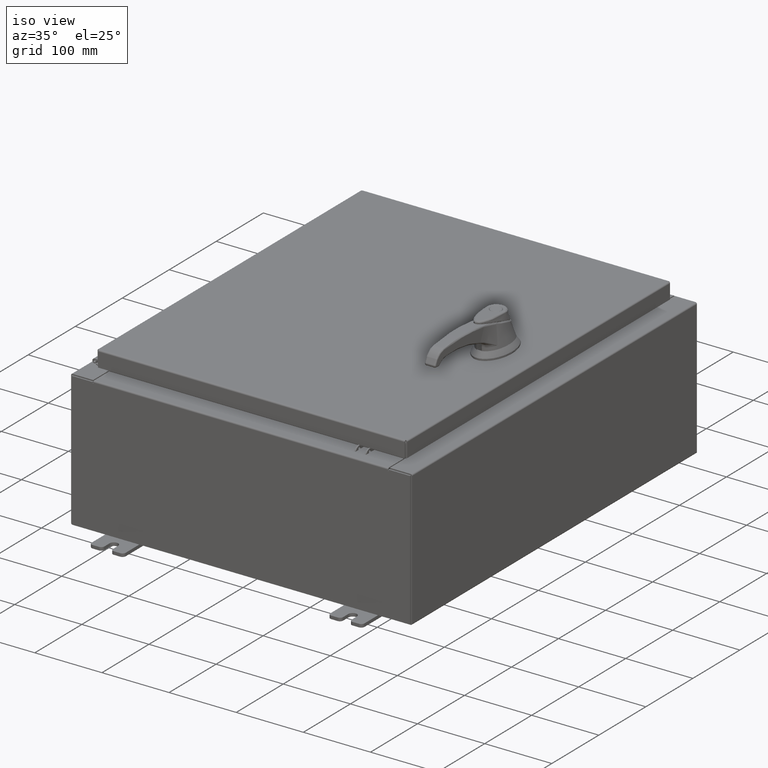
[diagram: clean part render]
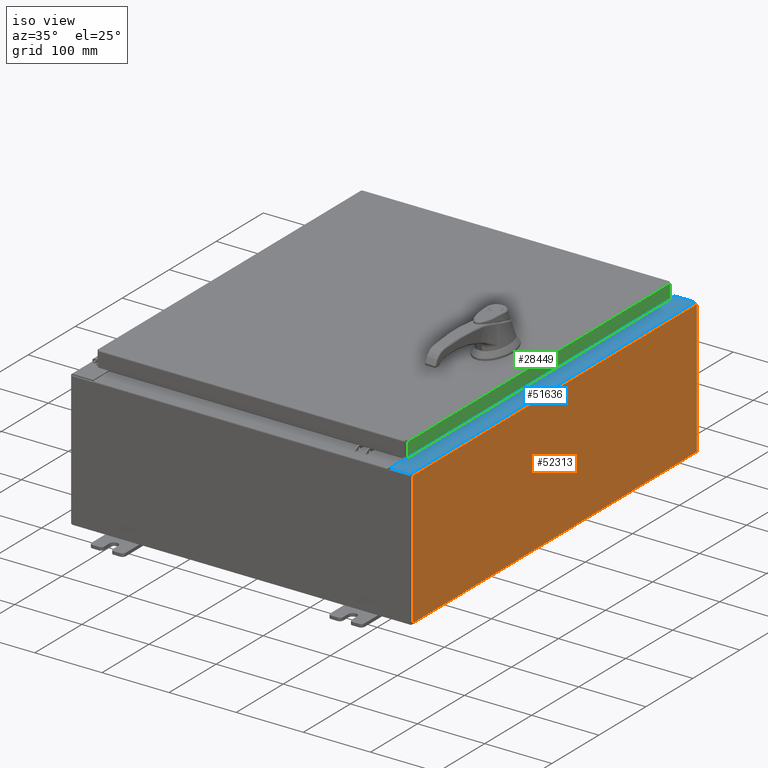
[diagram: same view with three faces highlighted in distinct colors, each labeled with its STEP entity id]
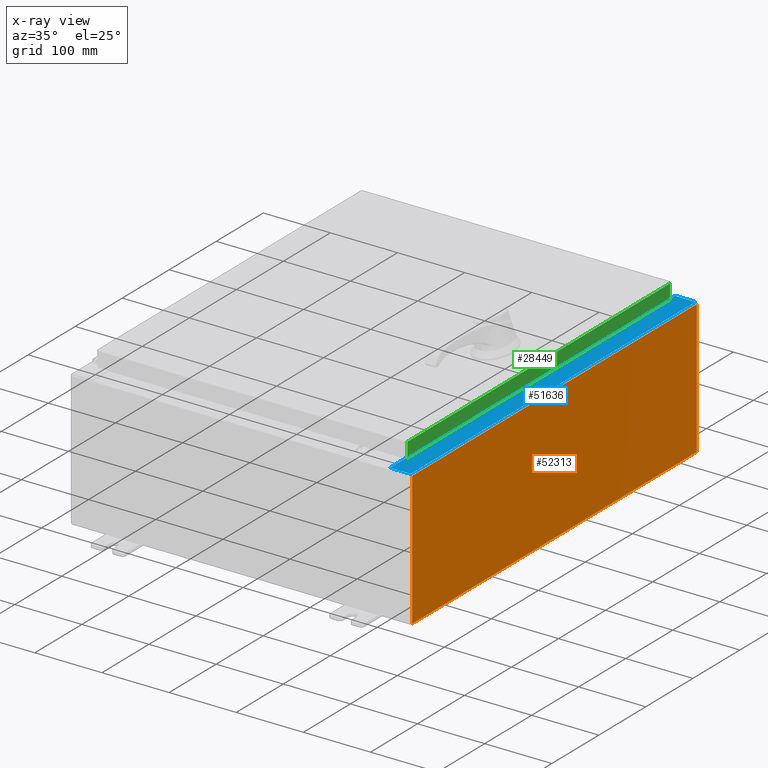
[diagram: x-ray of the same camera — body ghosted, the three highlighted faces saturated]
A machine part, iso view with three faces highlighted in distinct colors.
The next image is the same camera in x-ray (body ghosted, the three faces saturated) — at least one of them is partly hidden behind the body in this view.
Their STEP definitions:

[orange] entity #52313 — the highlighted planar face has unit normal (-1, 0, 0).
#10061 = VERTEX_POINT ( 'NONE', #60053 ) ;
#10732 = VERTEX_POINT ( 'NONE', #104570 ) ;
#11714 = LINE ( 'NONE', #12721, #102283 ) ;
#12721 = CARTESIAN_POINT ( 'NONE',  ( 10.00000000000002800, 11.92530000000000000, 7.837599999999992100 ) ) ;
#16043 = VECTOR ( 'NONE', #21494, 39.37007874015748100 ) ;
#20081 = EDGE_CURVE ( 'NONE', #10061, #73490, #74102, .T. ) ;
#21494 = DIRECTION ( 'NONE',  ( -3.584876173029202900E-015, 0.0000000000000000000, -1.000000000000000000 ) ) ;
#22792 = FACE_OUTER_BOUND ( 'NONE', #48271, .T. ) ;
#26773 = CARTESIAN_POINT ( 'NONE',  ( 10.00000000000000000, -11.92530000000000000, 0.01299999999999984700 ) ) ;
#33701 = DIRECTION ( 'NONE',  ( -1.000000000000000000, 0.0000000000000000000, 3.584876173029202900E-015 ) ) ;
#37243 = EDGE_CURVE ( 'NONE', #10732, #77894, #11714, .T. ) ;
#40558 = ORIENTED_EDGE ( 'NONE', *, *, #74098, .T. ) ;
#48271 = EDGE_LOOP ( 'NONE', ( #67794, #56634, #54606, #40558 ) ) ;
#48746 = CARTESIAN_POINT ( 'NONE',  ( 10.00000000000000000, -11.92530000000000000, -3.610957538630361200E-014 ) ) ;
#49134 = LINE ( 'NONE', #72781, #66979 ) ;
#50753 = VECTOR ( 'NONE', #53262, 39.37007874015748100 ) ;
#50918 = EDGE_CURVE ( 'NONE', #77894, #73490, #106565, .T. ) ;
#52271 = AXIS2_PLACEMENT_3D ( 'NONE', #68628, #33701, #95015 ) ;
#52313 = ADVANCED_FACE ( 'NONE', ( #22792 ), #86244, .F. ) ;
#52643 = CARTESIAN_POINT ( 'NONE',  ( 10.00000000000002800, -11.92530000000000000, 7.837599999999998300 ) ) ;
#53262 = DIRECTION ( 'NONE',  ( -0.0000000000000000000, -1.000000000000000000, -0.0000000000000000000 ) ) ;
#54606 = ORIENTED_EDGE ( 'NONE', *, *, #20081, .F. ) ;
#56634 = ORIENTED_EDGE ( 'NONE', *, *, #50918, .T. ) ;
#60053 = CARTESIAN_POINT ( 'NONE',  ( 10.00000000000000000, 11.92529999999999800, 0.01299999999999984700 ) ) ;
#65604 = CARTESIAN_POINT ( 'NONE',  ( 10.00000000000000000, -11.92530000000000000, 0.01299999999999983600 ) ) ;
#66979 = VECTOR ( 'NONE', #81585, 39.37007874015748100 ) ;
#67794 = ORIENTED_EDGE ( 'NONE', *, *, #37243, .T. ) ;
#68628 = CARTESIAN_POINT ( 'NONE',  ( 10.00000000000000000, 0.0000000000000000000, -3.610957538630361200E-014 ) ) ;
#72781 = CARTESIAN_POINT ( 'NONE',  ( 10.00000000000000000, 11.92530000000000000, -3.610957538630361200E-014 ) ) ;
#73490 = VERTEX_POINT ( 'NONE', #65604 ) ;
#74098 = EDGE_CURVE ( 'NONE', #10061, #10732, #49134, .T. ) ;
#74102 = LINE ( 'NONE', #26773, #50753 ) ;
#74144 = DIRECTION ( 'NONE',  ( -0.0000000000000000000, -1.000000000000000000, -0.0000000000000000000 ) ) ;
#77894 = VERTEX_POINT ( 'NONE', #52643 ) ;
#81585 = DIRECTION ( 'NONE',  ( 3.584876173029202900E-015, 0.0000000000000000000, 1.000000000000000000 ) ) ;
#86244 = PLANE ( 'NONE',  #52271 ) ;
#95015 = DIRECTION ( 'NONE',  ( 3.584876173029202900E-015, 0.0000000000000000000, 1.000000000000000000 ) ) ;
#102283 = VECTOR ( 'NONE', #74144, 39.37007874015748100 ) ;
#104570 = CARTESIAN_POINT ( 'NONE',  ( 10.00000000000002800, 11.92529999999999800, 7.837599999999992100 ) ) ;
#106565 = LINE ( 'NONE', #48746, #16043 ) ;

[blue] entity #51636 — the highlighted planar face has unit normal (-0, 0, -1).
#556 = VECTOR ( 'NONE', #62189, 39.37007874015748100 ) ;
#4041 = CARTESIAN_POINT ( 'NONE',  ( 8.699700000000028400, -2.820533458446088700E-030, 7.925300000000007100 ) ) ;
#4826 = AXIS2_PLACEMENT_3D ( 'NONE', #73505, #20888, #82283 ) ;
#6451 = CARTESIAN_POINT ( 'NONE',  ( 8.699700000000028400, -2.820533458446088700E-030, 7.925300000000007100 ) ) ;
#9403 = VERTEX_POINT ( 'NONE', #89696 ) ;
#11134 = CARTESIAN_POINT ( 'NONE',  ( 8.750050000000030100, 10.63109999999999500, 7.925300000000008900 ) ) ;
#11770 = DIRECTION ( 'NONE',  ( -1.000000000000000000, 0.0000000000000000000, 0.0000000000000000000 ) ) ;
#13846 = EDGE_CURVE ( 'NONE', #51890, #95538, #57449, .T. ) ;
#14103 = AXIS2_PLACEMENT_3D ( 'NONE', #47082, #108380, #55924 ) ;
#14361 = EDGE_CURVE ( 'NONE', #72703, #28736, #97135, .T. ) ;
#14642 = CARTESIAN_POINT ( 'NONE',  ( 8.699700000000028400, 10.63109999999999600, 7.925300000000007100 ) ) ;
#15714 = CARTESIAN_POINT ( 'NONE',  ( 8.699700000000028400, 11.92529999999999600, 7.925300000000007100 ) ) ;
#16038 = CIRCLE ( 'NONE', #14103, 0.01867499999999949400 ) ;
#19940 = VERTEX_POINT ( 'NONE', #34117 ) ;
#20550 = LINE ( 'NONE', #59611, #43909 ) ;
#20711 = ORIENTED_EDGE ( 'NONE', *, *, #77951, .F. ) ;
#20888 = DIRECTION ( 'NONE',  ( 6.241167087353081500E-015, 0.0000000000000000000, 1.000000000000000000 ) ) ;
#21078 = LINE ( 'NONE', #77220, #111580 ) ;
#23050 = PLANE ( 'NONE',  #86058 ) ;
#24149 = VERTEX_POINT ( 'NONE', #49908 ) ;
#24461 = EDGE_CURVE ( 'NONE', #95538, #100030, #16038, .T. ) ;
#25610 = LINE ( 'NONE', #6451, #107857 ) ;
#28166 = CARTESIAN_POINT ( 'NONE',  ( 9.912300000000028500, -11.92530000000000000, 7.925300000000000000 ) ) ;
#28736 = VERTEX_POINT ( 'NONE', #28166 ) ;
#32740 = CARTESIAN_POINT ( 'NONE',  ( 4.972393517341134900E-014, -11.92530000000000000, 7.925300000000062200 ) ) ;
#33559 = DIRECTION ( 'NONE',  ( 1.000000000000000000, 0.0000000000000000000, 0.0000000000000000000 ) ) ;
#33638 = CARTESIAN_POINT ( 'NONE',  ( 8.712700000000030100, 10.59374999999999600, 7.925300000000008900 ) ) ;
#34117 = CARTESIAN_POINT ( 'NONE',  ( 8.699700000000028400, -10.63109999999999600, 7.925300000000007100 ) ) ;
#34660 = LINE ( 'NONE', #55534, #55214 ) ;
#35203 = ORIENTED_EDGE ( 'NONE', *, *, #24461, .F. ) ;
#41735 = ORIENTED_EDGE ( 'NONE', *, *, #70019, .F. ) ;
#42232 = CARTESIAN_POINT ( 'NONE',  ( 8.712700000000030100, -10.59375000000000000, 7.925300000000008900 ) ) ;
#42333 = DIRECTION ( 'NONE',  ( -1.000000000000000000, 0.0000000000000000000, 6.241167087353082300E-015 ) ) ;
#43909 = VECTOR ( 'NONE', #33559, 39.37007874015748100 ) ;
#43996 = CARTESIAN_POINT ( 'NONE',  ( 8.750050000000030100, 10.59374999999999600, 7.925300000000007100 ) ) ;
#45331 = VECTOR ( 'NONE', #53199, 39.37007874015748100 ) ;
#46237 = VERTEX_POINT ( 'NONE', #74301 ) ;
#47082 = CARTESIAN_POINT ( 'NONE',  ( 8.750050000000030100, 10.61242499999999500, 7.925300000000008900 ) ) ;
#49908 = CARTESIAN_POINT ( 'NONE',  ( 9.912300000000028500, 11.92529999999999800, 7.925300000000000000 ) ) ;
#51636 = ADVANCED_FACE ( 'NONE', ( #76419 ), #23050, .F. ) ;
#51890 = VERTEX_POINT ( 'NONE', #52552 ) ;
#52220 = ORIENTED_EDGE ( 'NONE', *, *, #63952, .T. ) ;
#52552 = CARTESIAN_POINT ( 'NONE',  ( 8.712700000000030100, 10.59374999999999600, 7.925300000000008900 ) ) ;
#52577 = ORIENTED_EDGE ( 'NONE', *, *, #58444, .F. ) ;
#53199 = DIRECTION ( 'NONE',  ( -0.0000000000000000000, -1.000000000000000000, -0.0000000000000000000 ) ) ;
#55214 = VECTOR ( 'NONE', #11770, 39.37007874015748100 ) ;
#55479 = ORIENTED_EDGE ( 'NONE', *, *, #69533, .F. ) ;
#55534 = CARTESIAN_POINT ( 'NONE',  ( 8.750050000000030100, -10.59374999999999800, 7.925300000000008900 ) ) ;
#55897 = EDGE_CURVE ( 'NONE', #66883, #51890, #58287, .T. ) ;
#55924 = DIRECTION ( 'NONE',  ( 1.000000000000000000, 0.0000000000000000000, 0.0000000000000000000 ) ) ;
#57046 = EDGE_CURVE ( 'NONE', #24149, #96857, #21078, .T. ) ;
#57258 = CIRCLE ( 'NONE', #4826, 0.01867499999999949400 ) ;
#57449 = LINE ( 'NONE', #33638, #78056 ) ;
#58287 = LINE ( 'NONE', #42232, #102165 ) ;
#58337 = DIRECTION ( 'NONE',  ( -1.000000000000000000, 0.0000000000000000000, 6.241167087353080700E-015 ) ) ;
#58373 = EDGE_LOOP ( 'NONE', ( #41735, #100267, #69454, #55479, #83716, #52220, #20711, #35203, #109408, #64113, #52577, #110677 ) ) ;
#58444 = EDGE_CURVE ( 'NONE', #46237, #66883, #34660, .T. ) ;
#59008 = DIRECTION ( 'NONE',  ( -3.242104277671754600E-031, -1.000000000000000000, 2.023451451157158500E-045 ) ) ;
#59611 = CARTESIAN_POINT ( 'NONE',  ( 8.699700000000028400, -10.63109999999999600, 7.925300000000008900 ) ) ;
#62189 = DIRECTION ( 'NONE',  ( -1.000000000000000000, 4.340572780399910900E-014, 0.0000000000000000000 ) ) ;
#63952 = EDGE_CURVE ( 'NONE', #96857, #68975, #75203, .T. ) ;
#64113 = ORIENTED_EDGE ( 'NONE', *, *, #55897, .F. ) ;
#65166 = EDGE_CURVE ( 'NONE', #19940, #72703, #25610, .T. ) ;
#65460 = DIRECTION ( 'NONE',  ( -3.242104277671754600E-031, -1.000000000000000000, 2.023451451157158500E-045 ) ) ;
#66883 = VERTEX_POINT ( 'NONE', #95141 ) ;
#68975 = VERTEX_POINT ( 'NONE', #14642 ) ;
#69454 = ORIENTED_EDGE ( 'NONE', *, *, #14361, .T. ) ;
#69533 = EDGE_CURVE ( 'NONE', #24149, #28736, #94731, .T. ) ;
#70019 = EDGE_CURVE ( 'NONE', #19940, #9403, #20550, .T. ) ;
#72703 = VERTEX_POINT ( 'NONE', #82994 ) ;
#73505 = CARTESIAN_POINT ( 'NONE',  ( 8.750050000000030100, -10.61242499999999800, 7.925300000000008900 ) ) ;
#73902 = VECTOR ( 'NONE', #102839, 39.37007874015748100 ) ;
#74301 = CARTESIAN_POINT ( 'NONE',  ( 8.750050000000030100, -10.59374999999999800, 7.925300000000007100 ) ) ;
#74886 = EDGE_CURVE ( 'NONE', #9403, #46237, #57258, .T. ) ;
#75203 = LINE ( 'NONE', #4041, #101179 ) ;
#76419 = FACE_OUTER_BOUND ( 'NONE', #58373, .T. ) ;
#77220 = CARTESIAN_POINT ( 'NONE',  ( 4.972393517341134900E-014, 11.92529999999999800, 7.925300000000062200 ) ) ;
#77951 = EDGE_CURVE ( 'NONE', #100030, #68975, #91164, .T. ) ;
#78056 = VECTOR ( 'NONE', #86180, 39.37007874015748100 ) ;
#82283 = DIRECTION ( 'NONE',  ( 1.000000000000000000, 0.0000000000000000000, 0.0000000000000000000 ) ) ;
#82994 = CARTESIAN_POINT ( 'NONE',  ( 8.699700000000028400, -11.92530000000000000, 7.925300000000007100 ) ) ;
#83716 = ORIENTED_EDGE ( 'NONE', *, *, #57046, .T. ) ;
#86058 = AXIS2_PLACEMENT_3D ( 'NONE', #102022, #110803, #58337 ) ;
#86180 = DIRECTION ( 'NONE',  ( 1.000000000000000000, 0.0000000000000000000, 0.0000000000000000000 ) ) ;
#89696 = CARTESIAN_POINT ( 'NONE',  ( 8.750050000000030100, -10.63109999999999600, 7.925300000000007100 ) ) ;
#90254 = CARTESIAN_POINT ( 'NONE',  ( 8.750050000000030100, 10.63109999999999500, 7.925300000000007100 ) ) ;
#91164 = LINE ( 'NONE', #11134, #556 ) ;
#94731 = LINE ( 'NONE', #96871, #45331 ) ;
#95141 = CARTESIAN_POINT ( 'NONE',  ( 8.712700000000030100, -10.59374999999999800, 7.925300000000008900 ) ) ;
#95538 = VERTEX_POINT ( 'NONE', #43996 ) ;
#96857 = VERTEX_POINT ( 'NONE', #15714 ) ;
#96871 = CARTESIAN_POINT ( 'NONE',  ( 9.912300000000028500, -11.92530000000000000, 7.925300000000000000 ) ) ;
#97135 = LINE ( 'NONE', #32740, #73902 ) ;
#100030 = VERTEX_POINT ( 'NONE', #90254 ) ;
#100267 = ORIENTED_EDGE ( 'NONE', *, *, #65166, .T. ) ;
#101179 = VECTOR ( 'NONE', #65460, 39.37007874015748100 ) ;
#102022 = CARTESIAN_POINT ( 'NONE',  ( 4.972393517341134900E-014, 0.0000000000000000000, 7.925300000000062200 ) ) ;
#102165 = VECTOR ( 'NONE', #103488, 39.37007874015748100 ) ;
#102839 = DIRECTION ( 'NONE',  ( 1.000000000000000000, 4.084933421431490900E-032, -6.241167087353082300E-015 ) ) ;
#103488 = DIRECTION ( 'NONE',  ( -0.0000000000000000000, 1.000000000000000000, -0.0000000000000000000 ) ) ;
#107857 = VECTOR ( 'NONE', #59008, 39.37007874015748100 ) ;
#108380 = DIRECTION ( 'NONE',  ( 6.241167087353081500E-015, 0.0000000000000000000, 1.000000000000000000 ) ) ;
#109408 = ORIENTED_EDGE ( 'NONE', *, *, #13846, .F. ) ;
#110677 = ORIENTED_EDGE ( 'NONE', *, *, #74886, .F. ) ;
#110803 = DIRECTION ( 'NONE',  ( -6.241167087353080700E-015, 0.0000000000000000000, -1.000000000000000000 ) ) ;
#111580 = VECTOR ( 'NONE', #42333, 39.37007874015748100 ) ;

[green] entity #28449 — the highlighted planar face has unit normal (1, 0, 0).
#6255 = CARTESIAN_POINT ( 'NONE',  ( 9.077999999999999400, -11.00515786437626900, -0.08769999999999997200 ) ) ;
#10679 = VERTEX_POINT ( 'NONE', #6255 ) ;
#17817 = EDGE_CURVE ( 'NONE', #44917, #70648, #90778, .T. ) ;
#18714 = EDGE_CURVE ( 'NONE', #44917, #19958, #28913, .T. ) ;
#19958 = VERTEX_POINT ( 'NONE', #104611 ) ;
#20761 = VECTOR ( 'NONE', #26015, 39.37007874015748100 ) ;
#22952 = EDGE_LOOP ( 'NONE', ( #62562, #67489, #75050, #23053 ) ) ;
#23053 = ORIENTED_EDGE ( 'NONE', *, *, #63405, .T. ) ;
#25153 = DIRECTION ( 'NONE',  ( 3.798629886902798700E-015, 0.0000000000000000000, -1.000000000000000000 ) ) ;
#26015 = DIRECTION ( 'NONE',  ( 0.0000000000000000000, -1.000000000000000000, 0.0000000000000000000 ) ) ;
#28449 = ADVANCED_FACE ( 'NONE', ( #111354 ), #60066, .T. ) ;
#28913 = LINE ( 'NONE', #55799, #72882 ) ;
#32187 = DIRECTION ( 'NONE',  ( 0.0000000000000000000, -1.000000000000000000, 0.0000000000000000000 ) ) ;
#35439 = LINE ( 'NONE', #75939, #99871 ) ;
#35515 = VECTOR ( 'NONE', #80152, 39.37007874015748100 ) ;
#43306 = CARTESIAN_POINT ( 'NONE',  ( 9.078000000000001200, -11.09399999999999900, -0.9376999999999997600 ) ) ;
#44917 = VERTEX_POINT ( 'NONE', #71106 ) ;
#46954 = DIRECTION ( 'NONE',  ( -3.798629886902798700E-015, -6.982962677686267500E-015, 1.000000000000000000 ) ) ;
#53273 = AXIS2_PLACEMENT_3D ( 'NONE', #68942, #77740, #25153 ) ;
#55799 = CARTESIAN_POINT ( 'NONE',  ( 9.077999999999999400, 11.00515786437626900, 1.115933823983001800E-013 ) ) ;
#60066 = PLANE ( 'NONE',  #53273 ) ;
#61552 = LINE ( 'NONE', #62473, #35515 ) ;
#62473 = CARTESIAN_POINT ( 'NONE',  ( 9.077999999999999400, -11.00515786437626900, -0.07469999999999972500 ) ) ;
#62562 = ORIENTED_EDGE ( 'NONE', *, *, #111544, .F. ) ;
#63405 = EDGE_CURVE ( 'NONE', #19958, #10679, #35439, .T. ) ;
#66352 = CARTESIAN_POINT ( 'NONE',  ( 9.078000000000001200, -11.00515786437626200, -0.9376999999999997600 ) ) ;
#67489 = ORIENTED_EDGE ( 'NONE', *, *, #17817, .F. ) ;
#68942 = CARTESIAN_POINT ( 'NONE',  ( 9.077999999999999400, 0.0000000000000000000, 3.474477576931518200E-014 ) ) ;
#70648 = VERTEX_POINT ( 'NONE', #66352 ) ;
#71106 = CARTESIAN_POINT ( 'NONE',  ( 9.078000000000001200, 11.00515786437627400, -0.9376999999999997600 ) ) ;
#72882 = VECTOR ( 'NONE', #46954, 39.37007874015748100 ) ;
#75050 = ORIENTED_EDGE ( 'NONE', *, *, #18714, .T. ) ;
#75939 = CARTESIAN_POINT ( 'NONE',  ( 9.077999999999999400, 0.0000000000000000000, -0.08769999999999997200 ) ) ;
#77740 = DIRECTION ( 'NONE',  ( 1.000000000000000000, 0.0000000000000000000, 3.798629886902798700E-015 ) ) ;
#80152 = DIRECTION ( 'NONE',  ( -3.798629886902798700E-015, -6.982962677686267500E-015, 1.000000000000000000 ) ) ;
#90778 = LINE ( 'NONE', #43306, #20761 ) ;
#99871 = VECTOR ( 'NONE', #32187, 39.37007874015748100 ) ;
#104611 = CARTESIAN_POINT ( 'NONE',  ( 9.077999999999999400, 11.00515786437627100, -0.08769999999999997200 ) ) ;
#111354 = FACE_OUTER_BOUND ( 'NONE', #22952, .T. ) ;
#111544 = EDGE_CURVE ( 'NONE', #70648, #10679, #61552, .T. ) ;